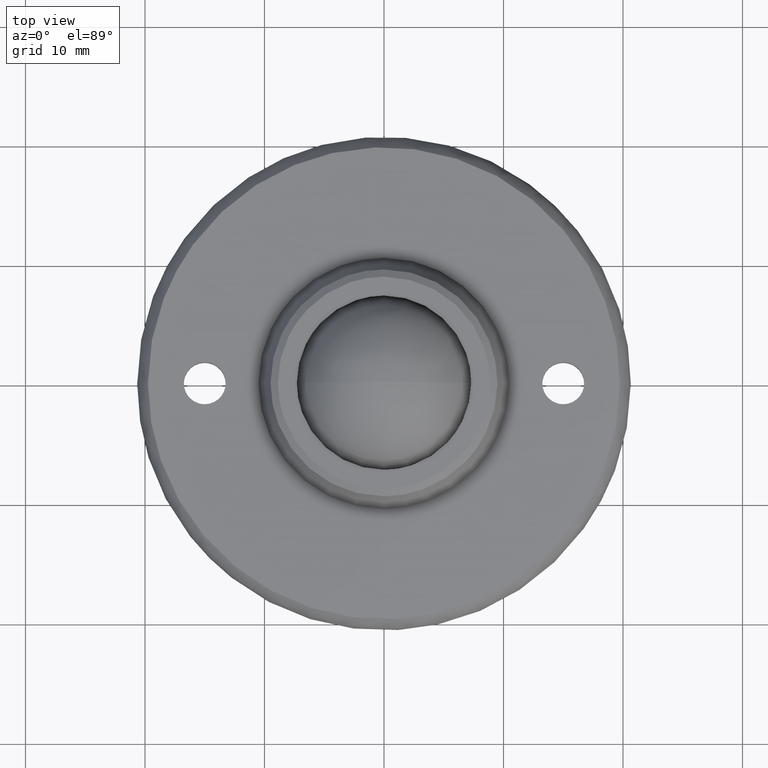
[diagram: clean part render]
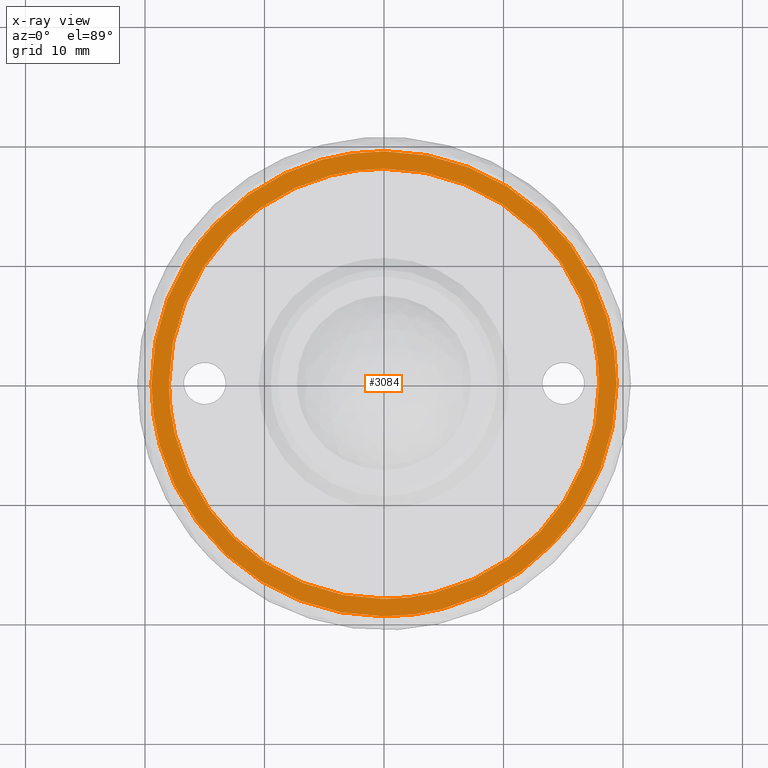
[diagram: x-ray — body ghosted, one internal face saturated and labeled with its STEP entity id]
A machine part, top view, then the same camera in x-ray: the body is ghosted and one INTERNAL B-rep face — a face not visible from any outside direction — is saturated and labeled: STEP entity #3084.
In plain terms, the highlighted face is a freeform B-spline surface patch.
Its self-contained STEP definition (entity closure, byte-faithful):
#2642=CARTESIAN_POINT('',(-14.117768219263500,13.397261776138860,0.800000000003066));
#2643=VERTEX_POINT('',#2642);
#2649=CARTESIAN_POINT('',(0.000000723947979,19.462733868256691,0.800000000000000));
#2650=VERTEX_POINT('',#2649);
#2651=CARTESIAN_POINT('',(-14.117768219263500,13.397261776138860,0.800000000003066));
#2652=CARTESIAN_POINT('',(-13.325024059529250,14.232793262436010,0.800000000002896));
#2653=CARTESIAN_POINT('',(-11.807366663205080,15.571210124711101,0.800000000002562));
#2654=CARTESIAN_POINT('',(-9.200084210443604,17.233149143765871,0.800000000001998));
#2655=CARTESIAN_POINT('',(-6.861906791695517,18.273010773817241,0.800000000001493));
#2656=CARTESIAN_POINT('',(-4.414192697635750,18.999381190379712,0.800000000000960));
#2657=CARTESIAN_POINT('',(-2.262380010376466,19.378423401008980,0.800000000000493));
#2658=CARTESIAN_POINT('',(-0.699278577927698,19.462744159271789,0.800000000000146));
#2659=CARTESIAN_POINT('',(0.000000723947979,19.462733868256691,0.800000000000000));
#2660=B_SPLINE_CURVE_WITH_KNOTS('',3,(#2651,#2652,#2653,#2654,#2655,#2656,#2657,#2658,#2659),.UNSPECIFIED.,.F.,.U.,(4,1,1,1,1,1,4),(3.738451E-009,3.455276450489064,6.046742164047913,9.255208237867617,11.106247880486340,13.697714106534150,15.795555742761740),.UNSPECIFIED.);
#2661=EDGE_CURVE('',#2643,#2650,#2660,.T.);
#2663=CARTESIAN_POINT('',(19.462733868256699,0.0,0.800000000000000));
#2664=VERTEX_POINT('',#2663);
#2665=CARTESIAN_POINT('',(0.000000723947979,19.462733868256691,0.800000000000000));
#2666=CARTESIAN_POINT('',(1.114606324708212,19.462816726786912,0.800000000000000));
#2667=CARTESIAN_POINT('',(2.866090146232754,19.311857108848638,0.799999999999999));
#2668=CARTESIAN_POINT('',(5.199294333822421,18.787860957389690,0.800000000000003));
#2669=CARTESIAN_POINT('',(7.356417284532988,18.075318521065459,0.799999999999997));
#2670=CARTESIAN_POINT('',(9.482701014953420,17.061657619145489,0.800000000000000));
#2671=CARTESIAN_POINT('',(11.420935707546789,15.800623281959281,0.799999999999999));
#2672=CARTESIAN_POINT('',(13.252073897883040,14.325934517859061,0.800000000000000));
#2673=CARTESIAN_POINT('',(14.776278234040589,12.744549234581649,0.800000000000003));
#2674=CARTESIAN_POINT('',(16.116358804414261,10.960525752949120,0.799999999999987));
#2675=CARTESIAN_POINT('',(17.266344650214201,9.094350152577283,0.800000000000037));
#2676=CARTESIAN_POINT('',(18.290232885957838,6.840717698703089,0.799999999999992));
#2677=CARTESIAN_POINT('',(19.020003566367560,4.352671212116771,0.799999999999993));
#2678=CARTESIAN_POINT('',(19.387921212514691,2.109776785902304,0.800000000000004));
#2679=CARTESIAN_POINT('',(19.462745459942841,0.676718807012300,0.800000000000000));
#2680=CARTESIAN_POINT('',(19.462733868256699,0.0,0.800000000000000));
#2681=B_SPLINE_CURVE_WITH_KNOTS('',3,(#2665,#2666,#2667,#2668,#2669,#2670,#2671,#2672,#2673,#2674,#2675,#2676,#2677,#2678,#2679,#2680),.UNSPECIFIED.,.F.,.U.,(4,1,1,1,1,1,1,1,1,1,1,1,1,4),(0.000000012302706,3.343803374949783,5.254561959616996,7.165320466832366,10.150873258505900,12.300479181269930,14.091802297875390,17.196759165892740,18.868667602751149,20.779426014539212,23.764985520653291,26.272852948729280,28.541879216823592,30.572038420194261),.UNSPECIFIED.);
#2682=EDGE_CURVE('',#2650,#2664,#2681,.T.);
#2684=CARTESIAN_POINT('',(14.117768219263370,-13.397261776138730,0.800000000003066));
#2685=VERTEX_POINT('',#2684);
#2686=CARTESIAN_POINT('',(19.462733868256699,0.0,0.800000000000000));
#2687=CARTESIAN_POINT('',(19.462778579618490,-0.923530821805496,0.800000000000211));
#2688=CARTESIAN_POINT('',(19.352960364436619,-2.462731968911517,0.800000000000567));
#2689=CARTESIAN_POINT('',(18.938671639178310,-4.619150510000654,0.800000000001054));
#2690=CARTESIAN_POINT('',(18.424879010804911,-6.355609564858079,0.800000000001455));
#2691=CARTESIAN_POINT('',(17.682783096060462,-8.215751804504386,0.800000000001879));
#2692=CARTESIAN_POINT('',(16.840517057600689,-9.820193116663523,0.800000000002253));
#2693=CARTESIAN_POINT('',(15.635387210770631,-11.654505736118329,0.800000000002666));
#2694=CARTESIAN_POINT('',(14.753516395524040,-12.727385802460420,0.800000000002917));
#2695=CARTESIAN_POINT('',(14.117768219263370,-13.397261776138730,0.800000000003066));
#2696=B_SPLINE_CURVE_WITH_KNOTS('',3,(#2686,#2687,#2688,#2689,#2690,#2691,#2692,#2693,#2694,#2695),.UNSPECIFIED.,.F.,.U.,(4,1,1,1,1,1,1,4),(4.644200E-009,2.770588507160678,4.617653413463589,6.580155285197083,8.196328546753453,10.620596381063320,12.005895324796651,14.776483827311081),.UNSPECIFIED.);
#2697=EDGE_CURVE('',#2664,#2685,#2696,.T.);
#2731=CARTESIAN_POINT('',(-0.000000723948708,-19.462733868256681,0.800000000000000));
#2732=VERTEX_POINT('',#2731);
#2733=CARTESIAN_POINT('',(14.117768219263370,-13.397261776138730,0.800000000003066));
#2734=CARTESIAN_POINT('',(13.240108615901280,-14.322341147986149,0.800000000002877));
#2735=CARTESIAN_POINT('',(11.583368113699560,-15.755570374367711,0.800000000002514));
#2736=CARTESIAN_POINT('',(9.221273325678084,-17.188408234193972,0.800000000002002));
#2737=CARTESIAN_POINT('',(7.238711917409590,-18.100393055106519,0.800000000001572));
#2738=CARTESIAN_POINT('',(5.447810208331852,-18.719579858110770,0.800000000001183));
#2739=CARTESIAN_POINT('',(3.002754780532599,-19.295790868177640,0.800000000000654));
#2740=CARTESIAN_POINT('',(1.192902052925375,-19.462864251436400,0.800000000000257));
#2741=CARTESIAN_POINT('',(-0.000000723948708,-19.462733868256681,0.800000000000000));
#2742=B_SPLINE_CURVE_WITH_KNOTS('',3,(#2733,#2734,#2735,#2736,#2737,#2738,#2739,#2740,#2741),.UNSPECIFIED.,.F.,.U.,(4,1,1,1,1,1,4),(3.738256E-009,3.825486092759752,6.540347703668788,8.267977682154680,10.365831080092059,12.216876042408851,15.795555742762410),.UNSPECIFIED.);
#2743=EDGE_CURVE('',#2685,#2732,#2742,.T.);
#2745=CARTESIAN_POINT('',(-19.462733868256699,0.0,0.800000000000000));
#2746=VERTEX_POINT('',#2745);
#2747=CARTESIAN_POINT('',(-0.000000723948708,-19.462733868256681,0.800000000000000));
#2748=CARTESIAN_POINT('',(-0.796141512694437,-19.462756444052371,0.800000000000001));
#2749=CARTESIAN_POINT('',(-2.229195314403920,-19.374679308010609,0.799999999999999));
#2750=CARTESIAN_POINT('',(-4.310424902529432,-19.013551909794220,0.799999999999998));
#2751=CARTESIAN_POINT('',(-6.229667860847442,-18.476086571250150,0.800000000000006));
#2752=CARTESIAN_POINT('',(-8.045454976741864,-17.756387408508960,0.799999999999991));
#2753=CARTESIAN_POINT('',(-9.816862792019398,-16.844202813618999,0.800000000000006));
#2754=CARTESIAN_POINT('',(-11.654896922708300,-15.648468247020221,0.799999999999994));
#2755=CARTESIAN_POINT('',(-13.333960420840629,-14.235646203078220,0.800000000000002));
#2756=CARTESIAN_POINT('',(-14.840340909478630,-12.643657246362880,0.800000000000000));
#2757=CARTESIAN_POINT('',(-16.251796582447771,-10.812067677770800,0.800000000000000));
#2758=CARTESIAN_POINT('',(-17.511655143532739,-8.635095851024721,0.800000000000000));
#2759=CARTESIAN_POINT('',(-18.579208453200948,-6.012377427956591,0.800000000000000));
#2760=CARTESIAN_POINT('',(-19.287542987641931,-3.184563603173815,0.800000000000000));
#2761=CARTESIAN_POINT('',(-19.462813259273400,-1.074796736304379,0.800000000000000));
#2762=CARTESIAN_POINT('',(-19.462733868256699,0.0,0.800000000000000));
#2763=B_SPLINE_CURVE_WITH_KNOTS('',3,(#2747,#2748,#2749,#2750,#2751,#2752,#2753,#2754,#2755,#2756,#2757,#2758,#2759,#2760,#2761,#2762),.UNSPECIFIED.,.F.,.U.,(4,1,1,1,1,1,1,1,1,1,1,1,1,4),(0.000000012309620,2.388424220198743,4.299182744802181,6.329364458028771,8.359542088834029,10.150873258507589,12.300479181270790,14.927771601112550,16.719067931270018,18.868667602751390,21.854228345098431,24.242673835306672,27.347654194451540,30.572038420193842),.UNSPECIFIED.);
#2764=EDGE_CURVE('',#2732,#2746,#2763,.T.);
#2766=CARTESIAN_POINT('',(-19.462733868256699,0.0,0.800000000000000));
#2767=CARTESIAN_POINT('',(-19.462777209063020,0.923530993554935,0.800000000000210));
#2768=CARTESIAN_POINT('',(-19.363941431147300,2.308810455355918,0.800000000000528));
#2769=CARTESIAN_POINT('',(-18.975457257358180,4.468931619584362,0.800000000001023));
#2770=CARTESIAN_POINT('',(-18.481983096943381,6.212527045208513,0.800000000001423));
#2771=CARTESIAN_POINT('',(-17.739850434165739,8.072654507711784,0.800000000001845));
#2772=CARTESIAN_POINT('',(-16.847239107297451,9.823211266045684,0.800000000002254));
#2773=CARTESIAN_POINT('',(-15.640750207071511,11.659582255019410,0.800000000002663));
#2774=CARTESIAN_POINT('',(-14.647544639642749,12.839021240920520,0.800000000002943));
#2775=CARTESIAN_POINT('',(-14.117768219263500,13.397261776138860,0.800000000003066));
#2776=B_SPLINE_CURVE_WITH_KNOTS('',3,(#2766,#2767,#2768,#2769,#2770,#2771,#2772,#2773,#2774,#2775),.UNSPECIFIED.,.F.,.U.,(4,1,1,1,1,1,1,4),(4.645193E-009,2.770588507161037,4.155887450893658,6.580155285196819,8.196328546753078,10.158830418493620,12.467659815715249,14.776483827311161),.UNSPECIFIED.);
#2777=EDGE_CURVE('',#2746,#2643,#2776,.T.);
#2970=CARTESIAN_POINT('',(21.407060906250440,-21.407060906250418,0.800000000000000));
#2971=CARTESIAN_POINT('',(-21.407061950312841,-21.407060906250418,0.800000000000000));
#2972=CARTESIAN_POINT('',(21.407060906250440,21.407061950312819,0.800000000000000));
#2973=CARTESIAN_POINT('',(-21.407061950312841,21.407061950312819,0.800000000000000));
#2974=B_SPLINE_SURFACE_WITH_KNOTS('',1,1,((#2970,#2972),(#2971,#2973)),.UNSPECIFIED.,.F.,.F.,.U.,(2,2),(2,2),(0.0,42.814122856563280),(0.0,42.814122856563252),.UNSPECIFIED.);
#2975=ORIENTED_EDGE('',*,*,#2764,.F.);
#2976=ORIENTED_EDGE('',*,*,#2743,.F.);
#2977=ORIENTED_EDGE('',*,*,#2697,.F.);
#2978=ORIENTED_EDGE('',*,*,#2682,.F.);
#2979=ORIENTED_EDGE('',*,*,#2661,.F.);
#2980=ORIENTED_EDGE('',*,*,#2777,.F.);
#2981=EDGE_LOOP('',(#2975,#2976,#2977,#2978,#2979,#2980));
#2982=FACE_OUTER_BOUND('',#2981,.T.);
#2983=CARTESIAN_POINT('',(0.000000753742928,17.999999999999989,0.800000000000000));
#2984=VERTEX_POINT('',#2983);
#2985=CARTESIAN_POINT('',(18.0,0.0,0.800000000000000));
#2986=VERTEX_POINT('',#2985);
#2987=CARTESIAN_POINT('',(0.000000753742928,17.999999999999989,0.800000000000000));
#2988=CARTESIAN_POINT('',(0.920390876106584,18.000054848499129,0.800000000000000));
#2989=CARTESIAN_POINT('',(2.540257118133808,17.875471709236550,0.800000000000001));
#2990=CARTESIAN_POINT('',(5.100170675101245,17.325368793472300,0.799999999999996));
#2991=CARTESIAN_POINT('',(7.526843058750107,16.431851328412261,0.800000000000006));
#2992=CARTESIAN_POINT('',(9.686270253596867,15.225909276988739,0.799999999999988));
#2993=CARTESIAN_POINT('',(11.411197505911799,13.962923666943480,0.800000000000002));
#2994=CARTESIAN_POINT('',(12.667914279624020,12.823895477213560,0.800000000000020));
#2995=CARTESIAN_POINT('',(13.888383035622541,11.493811835916560,0.799999999999990));
#2996=CARTESIAN_POINT('',(15.111614978007809,9.875879447270567,0.800000000000006));
#2997=CARTESIAN_POINT('',(16.294342388663921,7.788103389324299,0.799999999999997));
#2998=CARTESIAN_POINT('',(17.157728668995539,5.590015838318919,0.800000000000002));
#2999=CARTESIAN_POINT('',(17.818588227176519,3.018813713561106,0.799999999999994));
#3000=CARTESIAN_POINT('',(18.000169801025301,1.178109939935616,0.800000000000014));
#3001=CARTESIAN_POINT('',(18.0,0.0,0.800000000000000));
#3002=B_SPLINE_CURVE_WITH_KNOTS('',3,(#2987,#2988,#2989,#2990,#2991,#2992,#2993,#2994,#2995,#2996,#2997,#2998,#2999,#3000,#3001),.UNSPECIFIED.,.F.,.U.,(4,1,1,1,1,1,1,1,1,1,1,1,4),(0.000000017574354,2.761167755137986,4.859657983059634,7.841724638702520,10.492453368737310,12.259608986253861,14.247625307913960,15.572986595486810,17.671476918265991,20.322206379819310,22.752043079898900,24.740089806226219,28.274377811708369),.UNSPECIFIED.);
#3003=EDGE_CURVE('',#2984,#2986,#3002,.T.);
#3004=ORIENTED_EDGE('',*,*,#3003,.T.);
#3005=CARTESIAN_POINT('',(13.056738547370790,-12.390382227002400,0.799999999989639));
#3006=VERTEX_POINT('',#3005);
#3007=CARTESIAN_POINT('',(18.0,0.0,0.800000000000000));
#3008=CARTESIAN_POINT('',(18.000008238630890,-0.640588678323774,0.799999999999464));
#3009=CARTESIAN_POINT('',(17.923949836482421,-2.064125008487838,0.799999999998276));
#3010=CARTESIAN_POINT('',(17.557692403537779,-4.172398844320908,0.799999999996506));
#3011=CARTESIAN_POINT('',(16.963804074109291,-6.115787553787826,0.799999999994890));
#3012=CARTESIAN_POINT('',(16.116881326640360,-8.116998050115910,0.799999999993210));
#3013=CARTESIAN_POINT('',(14.906716439566059,-10.220999399690470,0.799999999991454));
#3014=CARTESIAN_POINT('',(13.718210386823070,-11.693416748908181,0.799999999990222));
#3015=CARTESIAN_POINT('',(13.056738547370790,-12.390382227002400,0.799999999989639));
#3016=B_SPLINE_CURVE_WITH_KNOTS('',3,(#3007,#3008,#3009,#3010,#3011,#3012,#3013,#3014,#3015),.UNSPECIFIED.,.F.,.U.,(4,1,1,1,1,1,4),(5.293257E-009,1.921769356116178,4.270611623971206,6.405920817349267,8.007390411193709,10.783287467623570,13.665947995993561),.UNSPECIFIED.);
#3017=EDGE_CURVE('',#2986,#3006,#3016,.T.);
#3018=ORIENTED_EDGE('',*,*,#3017,.T.);
#3019=CARTESIAN_POINT('',(-0.000000753742381,-17.999999999999989,0.800000000000000));
#3020=VERTEX_POINT('',#3019);
#3021=CARTESIAN_POINT('',(13.056738547370790,-12.390382227002400,0.799999999989639));
#3022=CARTESIAN_POINT('',(12.611567938785770,-12.859504014482511,0.799999999989993));
#3023=CARTESIAN_POINT('',(11.532230458474130,-13.880637359083540,0.799999999990850));
#3024=CARTESIAN_POINT('',(9.903901246524789,-15.077997118240580,0.799999999992141));
#3025=CARTESIAN_POINT('',(8.185370857004063,-16.061734435407431,0.799999999993506));
#3026=CARTESIAN_POINT('',(6.415377639973606,-16.862432467731669,0.799999999994901));
#3027=CARTESIAN_POINT('',(4.416760697808925,-17.497171801910920,0.799999999996517));
#3028=CARTESIAN_POINT('',(2.206470250802243,-17.908200627002810,0.799999999998243));
#3029=CARTESIAN_POINT('',(0.760853527169384,-18.000025085156810,0.799999999999400));
#3030=CARTESIAN_POINT('',(-0.000000753742381,-17.999999999999989,0.800000000000000));
#3031=B_SPLINE_CURVE_WITH_KNOTS('',3,(#3021,#3022,#3023,#3024,#3025,#3026,#3027,#3028,#3029,#3030),.UNSPECIFIED.,.F.,.U.,(4,1,1,1,1,1,1,4),(4.675222E-009,1.940178041957779,4.451006579558326,6.048810111527486,7.874847706654169,10.271551365340750,12.325868176264409,14.608430994325170),.UNSPECIFIED.);
#3032=EDGE_CURVE('',#3006,#3020,#3031,.T.);
#3033=ORIENTED_EDGE('',*,*,#3032,.T.);
#3034=CARTESIAN_POINT('',(-18.0,0.0,0.800000000000000));
#3035=VERTEX_POINT('',#3034);
#3036=CARTESIAN_POINT('',(-0.000000753742381,-17.999999999999989,0.800000000000000));
#3037=CARTESIAN_POINT('',(-0.920391216249749,-18.000055611319802,0.800000000000001));
#3038=CARTESIAN_POINT('',(-2.540258590223540,-17.875476960668159,0.800000000000001));
#3039=CARTESIAN_POINT('',(-4.847773317244320,-17.379568361772009,0.800000000000000));
#3040=CARTESIAN_POINT('',(-6.800978571381502,-16.707623120248279,0.799999999999998));
#3041=CARTESIAN_POINT('',(-8.431574419703711,-15.930254427859349,0.800000000000004));
#3042=CARTESIAN_POINT('',(-9.922173341515505,-15.049210460770709,0.799999999999997));
#3043=CARTESIAN_POINT('',(-11.535875890516460,-13.882876106997980,0.800000000000001));
#3044=CARTESIAN_POINT('',(-13.176267329669130,-12.340188491878120,0.799999999999994));
#3045=CARTESIAN_POINT('',(-14.504762833042410,-10.711164430489410,0.800000000000000));
#3046=CARTESIAN_POINT('',(-15.498682664803731,-9.203713424791761,0.800000000000001));
#3047=CARTESIAN_POINT('',(-16.367476213511122,-7.578338740380398,0.800000000000000));
#3048=CARTESIAN_POINT('',(-17.189280264659018,-5.523480201596543,0.799999999999998));
#3049=CARTESIAN_POINT('',(-17.835079445517941,-2.945214038037998,0.800000000000006));
#3050=CARTESIAN_POINT('',(-18.000094348969501,-1.030840317559518,0.799999999999998));
#3051=CARTESIAN_POINT('',(-18.0,0.0,0.800000000000000));
#3052=B_SPLINE_CURVE_WITH_KNOTS('',3,(#3036,#3037,#3038,#3039,#3040,#3041,#3042,#3043,#3044,#3045,#3046,#3047,#3048,#3049,#3050,#3051),.UNSPECIFIED.,.F.,.U.,(4,1,1,1,1,1,1,1,1,1,1,1,1,4),(0.000000017572567,2.761167755136881,4.859657983058821,7.068594562350988,8.946190669853937,10.271554360946199,12.259608986254300,14.910313560769429,17.008796190026661,18.555059421686561,20.322206379819871,22.531144910582380,25.181872953430972,28.274377811708689),.UNSPECIFIED.);
#3053=EDGE_CURVE('',#3020,#3035,#3052,.T.);
#3054=ORIENTED_EDGE('',*,*,#3053,.T.);
#3055=CARTESIAN_POINT('',(-13.056738547370690,12.390382227002309,0.799999999989640));
#3056=VERTEX_POINT('',#3055);
#3057=CARTESIAN_POINT('',(-18.0,0.0,0.800000000000000));
#3058=CARTESIAN_POINT('',(-18.000038373714439,0.854121697794174,0.799999999999288));
#3059=CARTESIAN_POINT('',(-17.901018108413339,2.242055378692893,0.799999999998124));
#3060=CARTESIAN_POINT('',(-17.497363437852911,4.377280891576816,0.799999999996338));
#3061=CARTESIAN_POINT('',(-16.851216729271481,6.491947247400715,0.799999999994580));
#3062=CARTESIAN_POINT('',(-15.916874079440269,8.497529875012786,0.799999999992893));
#3063=CARTESIAN_POINT('',(-14.660016460490199,10.526580198678131,0.799999999991196));
#3064=CARTESIAN_POINT('',(-13.718214214600360,11.693418603704750,0.799999999990224));
#3065=CARTESIAN_POINT('',(-13.056738547370690,12.390382227002309,0.799999999989640));
#3066=B_SPLINE_CURVE_WITH_KNOTS('',3,(#3057,#3058,#3059,#3060,#3061,#3062,#3063,#3064,#3065),.UNSPECIFIED.,.F.,.U.,(4,1,1,1,1,1,4),(5.294281E-009,2.562362381968519,4.163845707762924,6.512688483685048,9.181807435771566,10.783287467623310,13.665947995993500),.UNSPECIFIED.);
#3067=EDGE_CURVE('',#3035,#3056,#3066,.T.);
#3068=ORIENTED_EDGE('',*,*,#3067,.T.);
#3069=CARTESIAN_POINT('',(-13.056738547370690,12.390382227002309,0.799999999989640));
#3070=CARTESIAN_POINT('',(-12.611567915934099,12.859503959424890,0.799999999989994));
#3071=CARTESIAN_POINT('',(-11.532230559783100,13.880637554051599,0.799999999990847));
#3072=CARTESIAN_POINT('',(-9.903901022860751,15.077996622208779,0.799999999992143));
#3073=CARTESIAN_POINT('',(-8.185372141246758,16.061737634034291,0.799999999993505));
#3074=CARTESIAN_POINT('',(-6.623606382966617,16.768212611567328,0.799999999994742));
#3075=CARTESIAN_POINT('',(-4.783874536484342,17.391269846198970,0.799999999996208));
#3076=CARTESIAN_POINT('',(-2.586891424329592,17.872358480000479,0.799999999997943));
#3077=CARTESIAN_POINT('',(-0.913028216498247,18.000056913356349,0.799999999999277));
#3078=CARTESIAN_POINT('',(0.000000753742928,17.999999999999989,0.800000000000000));
#3079=B_SPLINE_CURVE_WITH_KNOTS('',3,(#3069,#3070,#3071,#3072,#3073,#3074,#3075,#3076,#3077,#3078),.UNSPECIFIED.,.F.,.U.,(4,1,1,1,1,1,1,4),(4.669864E-009,1.940178041953178,4.451006579554694,6.048810111524407,7.874847706651821,9.586778318594561,11.869350450438340,14.608430994325690),.UNSPECIFIED.);
#3080=EDGE_CURVE('',#3056,#2984,#3079,.T.);
#3081=ORIENTED_EDGE('',*,*,#3080,.T.);
#3082=EDGE_LOOP('',(#3004,#3018,#3033,#3054,#3068,#3081));
#3083=FACE_BOUND('',#3082,.T.);
#3084=ADVANCED_FACE('',(#2982,#3083),#2974,.F.);